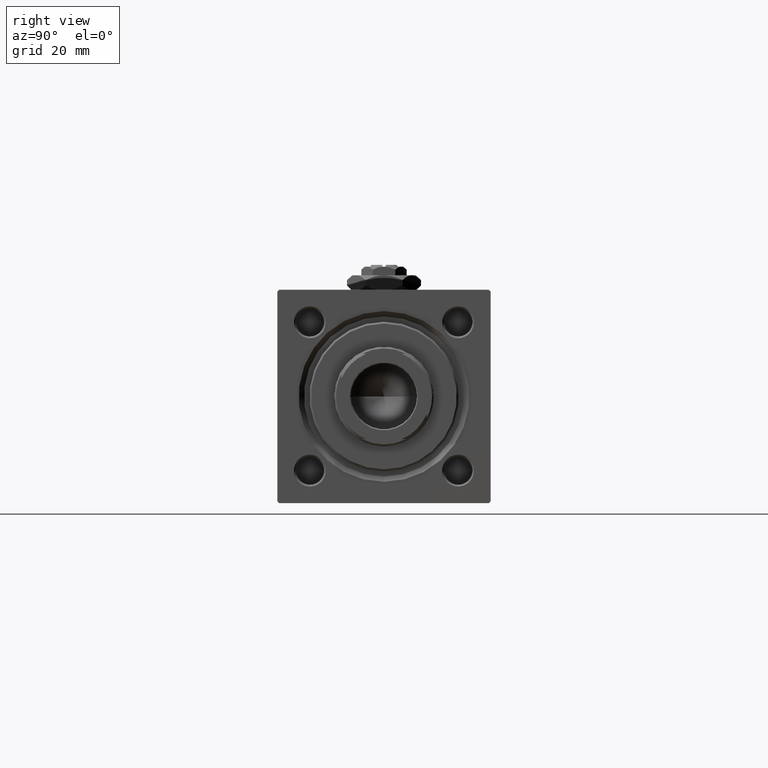
[diagram: clean part render]
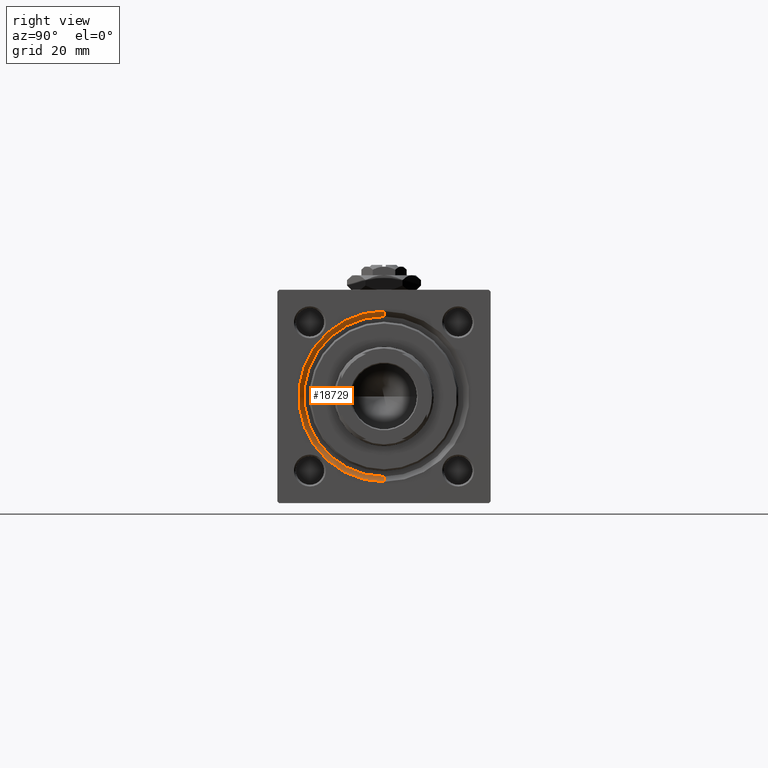
[diagram: same view with one face highlighted and labeled with its STEP entity id]
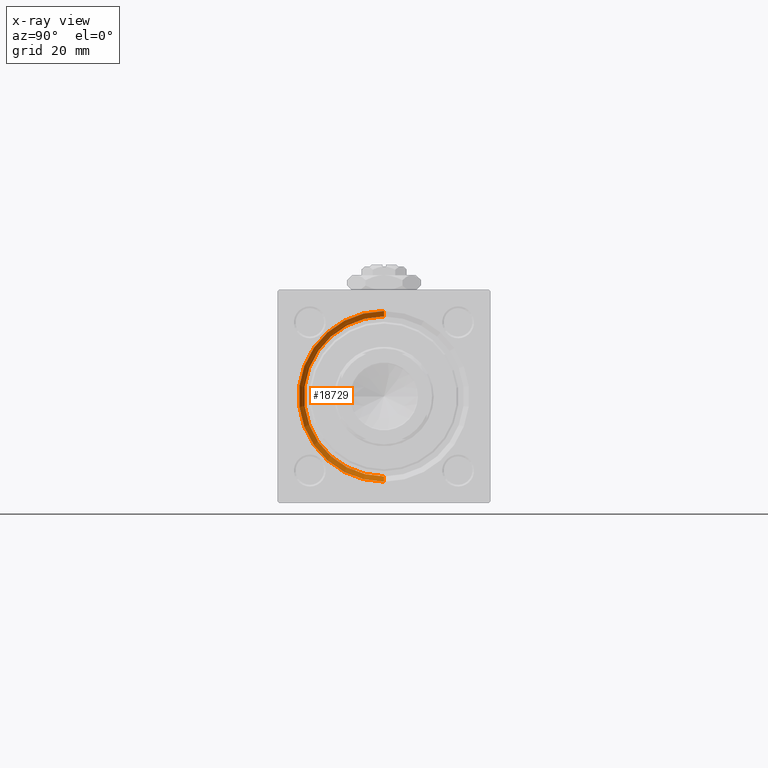
[diagram: x-ray of the same camera — body ghosted, the highlighted face saturated]
A machine part, right view. The second image highlights one B-rep face of the part: STEP entity #18729.
The next image is the same camera in x-ray: the body ghosted, the highlighted face saturated — about 0% of this face is hidden behind the body in this view.
In plain terms, the highlighted conical surface has half-angle 45 deg.
Its self-contained STEP definition (entity closure, byte-faithful):
#3743 = DIRECTION ( 'NONE',  ( 1.000000000000000000, 0.000000000000000000, 0.000000000000000000 ) ) ;
#6819 = ORIENTED_EDGE ( 'NONE', *, *, #23249, .F. ) ;
#7690 = CARTESIAN_POINT ( 'NONE',  ( 146.4999999999999432, 0.000000000000000000, 0.000000000000000000 ) ) ;
#9244 = CARTESIAN_POINT ( 'NONE',  ( 146.4999999999999432, 2.755455298081545172E-15, 22.50000000000000355 ) ) ;
#10397 = AXIS2_PLACEMENT_3D ( 'NONE', #30170, #46203, #26233 ) ;
#10542 = CIRCLE ( 'NONE', #48296, 22.50000000000000355 ) ;
#12733 = CARTESIAN_POINT ( 'NONE',  ( 148.0000000000000000, 0.000000000000000000, 0.000000000000000000 ) ) ;
#13129 = LINE ( 'NONE', #29145, #31158 ) ;
#14152 = FACE_OUTER_BOUND ( 'NONE', #27810, .T. ) ;
#14587 = EDGE_CURVE ( 'NONE', #19561, #24008, #49955, .T. ) ;
#14958 = EDGE_CURVE ( 'NONE', #27682, #27046, #13129, .T. ) ;
#16253 = CONICAL_SURFACE ( 'NONE', #10397, 22.50000000000000355, 0.7853981633974415066 ) ;
#17624 = ORIENTED_EDGE ( 'NONE', *, *, #36373, .F. ) ;
#18729 = ADVANCED_FACE ( 'NONE', ( #14152 ), #16253, .F. ) ;
#19561 = VERTEX_POINT ( 'NONE', #40237 ) ;
#20095 = DIRECTION ( 'NONE',  ( 0.000000000000000000, 0.000000000000000000, 1.000000000000000000 ) ) ;
#23249 = EDGE_CURVE ( 'NONE', #19561, #27682, #10542, .T. ) ;
#24008 = VERTEX_POINT ( 'NONE', #35364 ) ;
#25996 = DIRECTION ( 'NONE',  ( 0.7071067811865524577, 0.000000000000000000, -0.7071067811865426878 ) ) ;
#26233 = DIRECTION ( 'NONE',  ( 0.000000000000000000, 0.000000000000000000, -1.000000000000000000 ) ) ;
#26436 = ORIENTED_EDGE ( 'NONE', *, *, #14958, .F. ) ;
#27046 = VERTEX_POINT ( 'NONE', #48491 ) ;
#27682 = VERTEX_POINT ( 'NONE', #37018 ) ;
#27734 = VECTOR ( 'NONE', #41823, 1000.000000000000000 ) ;
#27810 = EDGE_LOOP ( 'NONE', ( #6819, #40158, #17624, #26436 ) ) ;
#29145 = CARTESIAN_POINT ( 'NONE',  ( 146.4999999999999432, 0.000000000000000000, -22.50000000000000355 ) ) ;
#30170 = CARTESIAN_POINT ( 'NONE',  ( 146.4999999999999432, 0.000000000000000000, 0.000000000000000000 ) ) ;
#31158 = VECTOR ( 'NONE', #25996, 1000.000000000000000 ) ;
#32417 = DIRECTION ( 'NONE',  ( -1.000000000000000000, 0.000000000000000000, -0.000000000000000000 ) ) ;
#35364 = CARTESIAN_POINT ( 'NONE',  ( 148.0000000000000000, 2.939152317953652628E-15, 24.00000000000003908 ) ) ;
#36306 = DIRECTION ( 'NONE',  ( 0.000000000000000000, 0.000000000000000000, 1.000000000000000000 ) ) ;
#36373 = EDGE_CURVE ( 'NONE', #27046, #24008, #41088, .T. ) ;
#37018 = CARTESIAN_POINT ( 'NONE',  ( 146.4999999999999432, 0.000000000000000000, -22.50000000000000355 ) ) ;
#39411 = AXIS2_PLACEMENT_3D ( 'NONE', #12733, #32417, #20095 ) ;
#40158 = ORIENTED_EDGE ( 'NONE', *, *, #14587, .T. ) ;
#40237 = CARTESIAN_POINT ( 'NONE',  ( 146.4999999999999432, 2.755455298081545172E-15, 22.50000000000000355 ) ) ;
#41088 = CIRCLE ( 'NONE', #39411, 24.00000000000003908 ) ;
#41823 = DIRECTION ( 'NONE',  ( 0.7071067811865524577, 8.659560562354874926E-17, 0.7071067811865426878 ) ) ;
#46203 = DIRECTION ( 'NONE',  ( 1.000000000000000000, 0.000000000000000000, 0.000000000000000000 ) ) ;
#48296 = AXIS2_PLACEMENT_3D ( 'NONE', #7690, #3743, #36306 ) ;
#48491 = CARTESIAN_POINT ( 'NONE',  ( 148.0000000000000000, 0.000000000000000000, -24.00000000000003908 ) ) ;
#49955 = LINE ( 'NONE', #9244, #27734 ) ;